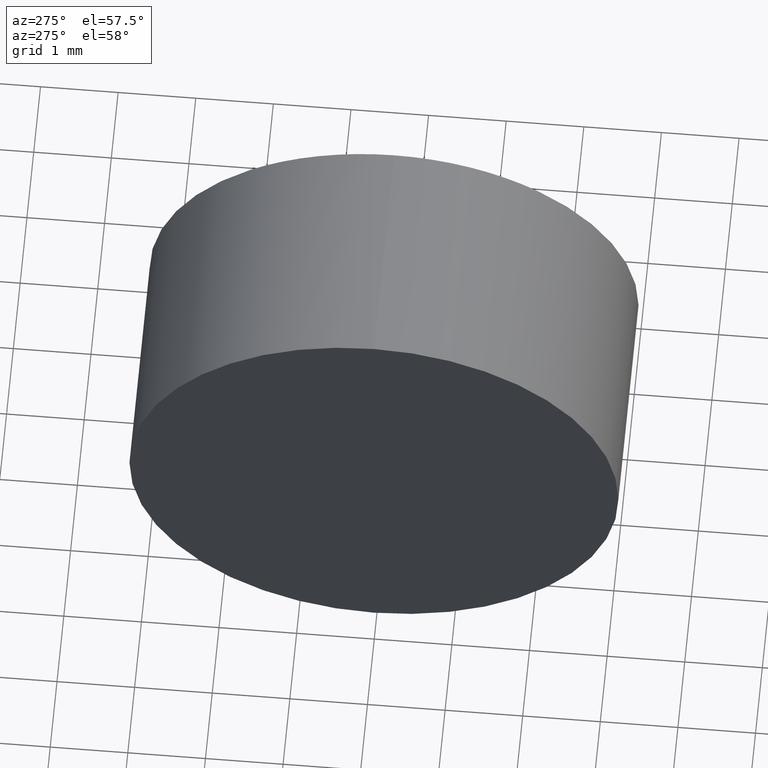
[diagram: clean part render]
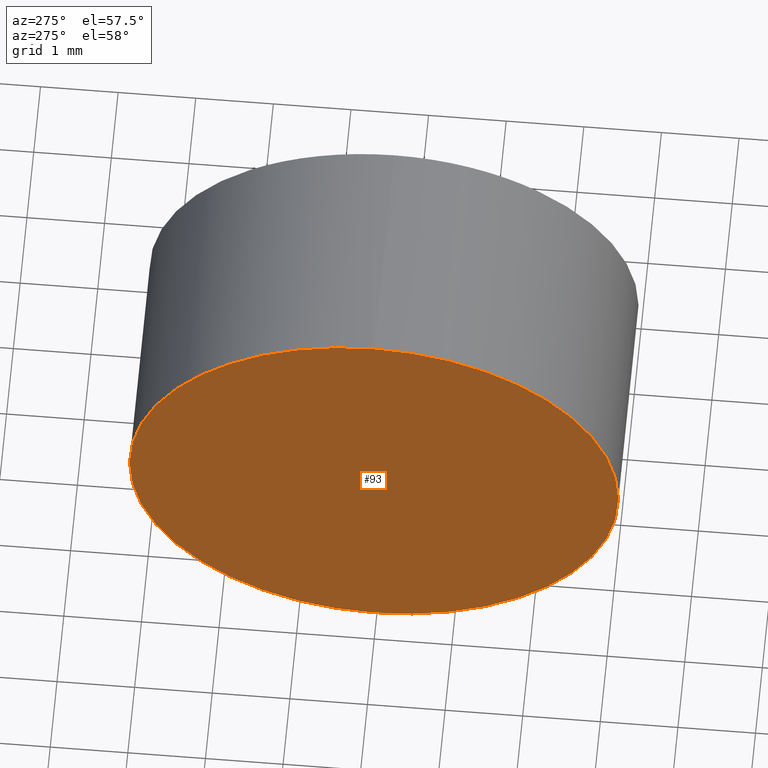
[diagram: same view with one face highlighted and labeled with its STEP entity id]
A machine part, auxiliary view. The second image highlights one B-rep face of the part: STEP entity #93.
In plain terms, the highlighted planar face has unit normal (1, 0, 0).
Its self-contained STEP definition (entity closure, byte-faithful):
#3 = DIRECTION ( 'NONE',  ( 0.0000000000000000000, 0.0000000000000000000, -1.000000000000000000 ) ) ;
#4 = DIRECTION ( 'NONE',  ( -1.000000000000000000, -0.0000000000000000000, -0.0000000000000000000 ) ) ;
#7 = EDGE_CURVE ( 'NONE', #125, #131, #18, .T. ) ;
#18 = CIRCLE ( 'NONE', #133, 3.149999999999998100 ) ;
#19 = AXIS2_PLACEMENT_3D ( 'NONE', #35, #4, #128 ) ;
#26 = FACE_OUTER_BOUND ( 'NONE', #176, .T. ) ;
#35 = CARTESIAN_POINT ( 'NONE',  ( 22.30926883257449200, 13.03112609140304000, 0.0000000000000000000 ) ) ;
#44 = DIRECTION ( 'NONE',  ( 1.000000000000000000, 0.0000000000000000000, 0.0000000000000000000 ) ) ;
#76 = DIRECTION ( 'NONE',  ( -1.000000000000000000, -0.0000000000000000000, -0.0000000000000000000 ) ) ;
#81 = EDGE_CURVE ( 'NONE', #131, #125, #96, .T. ) ;
#85 = CARTESIAN_POINT ( 'NONE',  ( 22.30926883257449200, 13.03112609140304000, 0.0000000000000000000 ) ) ;
#93 = ADVANCED_FACE ( 'NONE', ( #26 ), #142, .F. ) ;
#94 = ORIENTED_EDGE ( 'NONE', *, *, #81, .T. ) ;
#96 = CIRCLE ( 'NONE', #19, 3.149999999999998100 ) ;
#100 = ORIENTED_EDGE ( 'NONE', *, *, #7, .T. ) ;
#113 = CARTESIAN_POINT ( 'NONE',  ( 22.30926883257449200, 13.03112609140304000, 3.149999999999998100 ) ) ;
#117 = CARTESIAN_POINT ( 'NONE',  ( 22.30926883257449200, 13.03112609140304000, 0.0000000000000000000 ) ) ;
#125 = VERTEX_POINT ( 'NONE', #113 ) ;
#128 = DIRECTION ( 'NONE',  ( 0.0000000000000000000, 0.0000000000000000000, 1.000000000000000000 ) ) ;
#131 = VERTEX_POINT ( 'NONE', #153 ) ;
#133 = AXIS2_PLACEMENT_3D ( 'NONE', #85, #76, #186 ) ;
#142 = PLANE ( 'NONE',  #158 ) ;
#153 = CARTESIAN_POINT ( 'NONE',  ( 22.30926883257449200, 13.03112609140304000, -3.149999999999998100 ) ) ;
#158 = AXIS2_PLACEMENT_3D ( 'NONE', #117, #44, #3 ) ;
#176 = EDGE_LOOP ( 'NONE', ( #100, #94 ) ) ;
#186 = DIRECTION ( 'NONE',  ( 0.0000000000000000000, 0.0000000000000000000, 1.000000000000000000 ) ) ;